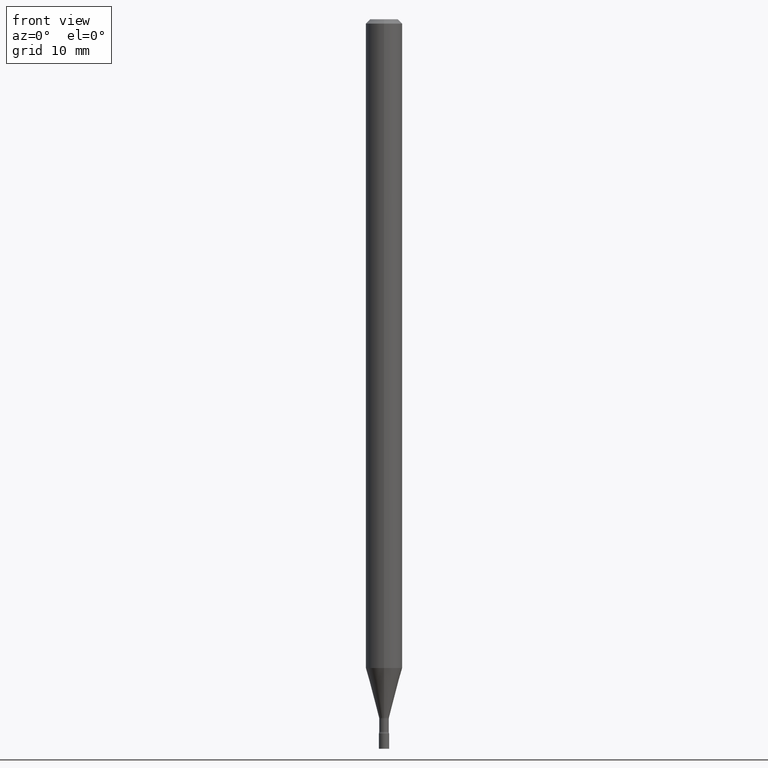
[diagram: clean part render]
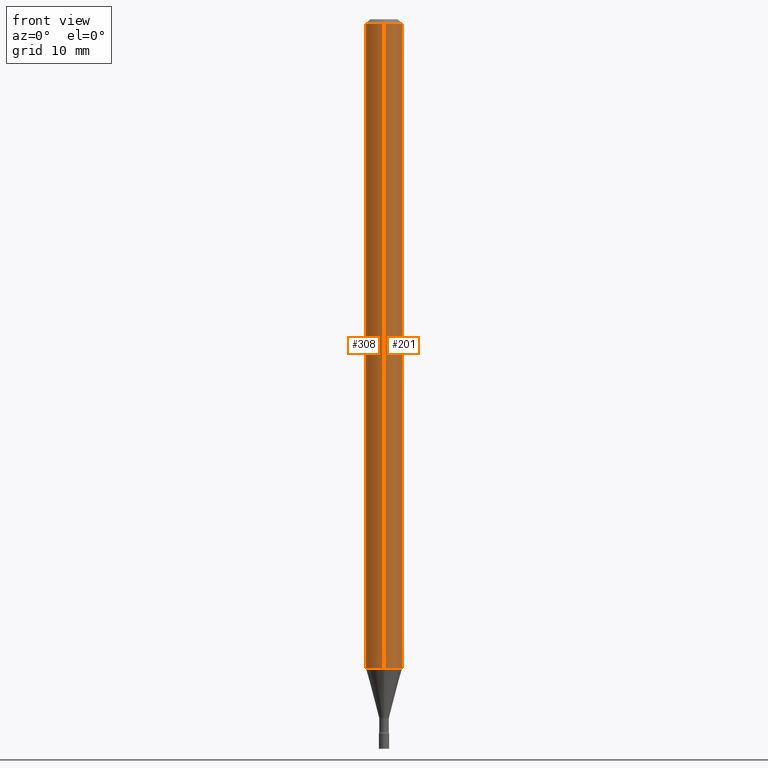
[diagram: same view with one multi-face feature highlighted, each face labeled with its STEP entity id]
A machine part, front view. The highlighted faces form ONE feature: a constant-radius fillet chain: 2 tangent blend faces with common blend radius 1.5875 mm. The faces share edges in the B-rep.
Their STEP definitions:
[1] entity #201 (Cylinder):
#18 = CARTESIAN_POINT ( 'NONE',  ( -4.364351673553912750E-16, -0.06250000000000005551, -0.01499999999999981209 ) ) ;
#19 = DIRECTION ( 'NONE',  ( -2.445477489033632295E-29, 3.491468904509902525E-15, 1.000000000000000000 ) ) ;
#27 = EDGE_CURVE ( 'NONE', #424, #189, #295, .T. ) ;
#28 = EDGE_CURVE ( 'NONE', #252, #455, #221, .T. ) ;
#43 = VECTOR ( 'NONE', #146, 39.37007874015748143 ) ;
#46 = CARTESIAN_POINT ( 'NONE',  ( 3.668216233550456149E-31, -5.237203356764864338E-17, -0.01500000000000003067 ) ) ;
#55 = DIRECTION ( 'NONE',  ( -2.445477489033632014E-29, 3.491468904509902130E-15, 1.000000000000000000 ) ) ;
#84 = VECTOR ( 'NONE', #55, 39.37007874015748143 ) ;
#100 = FACE_OUTER_BOUND ( 'NONE', #205, .T. ) ;
#102 = CARTESIAN_POINT ( 'NONE',  ( -4.364351673553916201E-16, -0.06250000000000000000, 2.182168065318689078E-16 ) ) ;
#110 = AXIS2_PLACEMENT_3D ( 'NONE', #429, #479, #443 ) ;
#118 = CARTESIAN_POINT ( 'NONE',  ( 4.440892098501173434E-16, 0.06249999999999995143, -0.01500000000000024751 ) ) ;
#141 = EDGE_CURVE ( 'NONE', #455, #189, #323, .T. ) ;
#146 = DIRECTION ( 'NONE',  ( -2.445477489033632014E-29, 3.491468904509902130E-15, 1.000000000000000000 ) ) ;
#189 = VERTEX_POINT ( 'NONE', #118 ) ;
#201 = ADVANCED_FACE ( 'NONE', ( #100 ), #379, .T. ) ;
#202 = ORIENTED_EDGE ( 'NONE', *, *, #511, .T. ) ;
#205 = EDGE_LOOP ( 'NONE', ( #202, #497, #248, #469 ) ) ;
#215 = DIRECTION ( 'NONE',  ( -6.982962677686265922E-15, -1.000000000000000000, 3.483106191921935554E-15 ) ) ;
#221 = LINE ( 'NONE', #102, #43 ) ;
#236 = CARTESIAN_POINT ( 'NONE',  ( 4.440892098501168504E-16, 0.06249999999999222844, -2.223139060311453807 ) ) ;
#248 = ORIENTED_EDGE ( 'NONE', *, *, #141, .F. ) ;
#250 = AXIS2_PLACEMENT_3D ( 'NONE', #46, #255, #215 ) ;
#252 = VERTEX_POINT ( 'NONE', #382 ) ;
#255 = DIRECTION ( 'NONE',  ( -2.445477489033632295E-29, 3.491468904509902525E-15, 1.000000000000000000 ) ) ;
#261 = DIRECTION ( 'NONE',  ( -6.982962677686265922E-15, -1.000000000000000000, 3.491468904509902525E-15 ) ) ;
#295 = LINE ( 'NONE', #405, #84 ) ;
#323 = CIRCLE ( 'NONE', #250, 0.06250000000000000000 ) ;
#379 = CYLINDRICAL_SURFACE ( 'NONE', #503, 0.06250000000000000000 ) ;
#382 = CARTESIAN_POINT ( 'NONE',  ( -4.364351673553374845E-16, -0.06250000000000778544, -2.223139060311453363 ) ) ;
#405 = CARTESIAN_POINT ( 'NONE',  ( 4.440892098500625669E-16, 0.06250000000000000000, -2.182168065318689078E-16 ) ) ;
#424 = VERTEX_POINT ( 'NONE', #236 ) ;
#429 = CARTESIAN_POINT ( 'NONE',  ( 5.436636526983041934E-29, -7.762020899478804819E-15, -2.223139060311453363 ) ) ;
#443 = DIRECTION ( 'NONE',  ( -6.982962677686265922E-15, -1.000000000000000000, 4.370956789862821150E-15 ) ) ;
#455 = VERTEX_POINT ( 'NONE', #18 ) ;
#469 = ORIENTED_EDGE ( 'NONE', *, *, #28, .F. ) ;
#479 = DIRECTION ( 'NONE',  ( -2.445477489033632295E-29, 3.491468904509902525E-15, 1.000000000000000000 ) ) ;
#497 = ORIENTED_EDGE ( 'NONE', *, *, #27, .T. ) ;
#500 = CARTESIAN_POINT ( 'NONE',  ( 0.000000000000000000, 0.000000000000000000, 0.000000000000000000 ) ) ;
#503 = AXIS2_PLACEMENT_3D ( 'NONE', #500, #19, #261 ) ;
#511 = EDGE_CURVE ( 'NONE', #252, #424, #516, .T. ) ;
#516 = CIRCLE ( 'NONE', #110, 0.06250000000000000000 ) ;
[2] entity #308 (Cylinder):
#11 = FACE_OUTER_BOUND ( 'NONE', #514, .T. ) ;
#17 = DIRECTION ( 'NONE',  ( -6.982962677686265922E-15, -1.000000000000000000, 3.483106191921935554E-15 ) ) ;
#18 = CARTESIAN_POINT ( 'NONE',  ( -4.364351673553912750E-16, -0.06250000000000005551, -0.01499999999999981209 ) ) ;
#27 = EDGE_CURVE ( 'NONE', #424, #189, #295, .T. ) ;
#28 = EDGE_CURVE ( 'NONE', #252, #455, #221, .T. ) ;
#39 = EDGE_CURVE ( 'NONE', #189, #455, #446, .T. ) ;
#43 = VECTOR ( 'NONE', #146, 39.37007874015748143 ) ;
#55 = DIRECTION ( 'NONE',  ( -2.445477489033632014E-29, 3.491468904509902130E-15, 1.000000000000000000 ) ) ;
#84 = VECTOR ( 'NONE', #55, 39.37007874015748143 ) ;
#102 = CARTESIAN_POINT ( 'NONE',  ( -4.364351673553916201E-16, -0.06250000000000000000, 2.182168065318689078E-16 ) ) ;
#118 = CARTESIAN_POINT ( 'NONE',  ( 4.440892098501173434E-16, 0.06249999999999995143, -0.01500000000000024751 ) ) ;
#134 = AXIS2_PLACEMENT_3D ( 'NONE', #259, #417, #17 ) ;
#146 = DIRECTION ( 'NONE',  ( -2.445477489033632014E-29, 3.491468904509902130E-15, 1.000000000000000000 ) ) ;
#189 = VERTEX_POINT ( 'NONE', #118 ) ;
#221 = LINE ( 'NONE', #102, #43 ) ;
#230 = ORIENTED_EDGE ( 'NONE', *, *, #27, .F. ) ;
#236 = CARTESIAN_POINT ( 'NONE',  ( 4.440892098501168504E-16, 0.06249999999999222844, -2.223139060311453807 ) ) ;
#238 = ORIENTED_EDGE ( 'NONE', *, *, #310, .T. ) ;
#252 = VERTEX_POINT ( 'NONE', #382 ) ;
#259 = CARTESIAN_POINT ( 'NONE',  ( 3.668216233550456149E-31, -5.237203356764864338E-17, -0.01500000000000003067 ) ) ;
#271 = ORIENTED_EDGE ( 'NONE', *, *, #39, .F. ) ;
#282 = CIRCLE ( 'NONE', #451, 0.06250000000000000000 ) ;
#295 = LINE ( 'NONE', #405, #84 ) ;
#296 = CYLINDRICAL_SURFACE ( 'NONE', #486, 0.06250000000000000000 ) ;
#307 = ORIENTED_EDGE ( 'NONE', *, *, #28, .T. ) ;
#308 = ADVANCED_FACE ( 'NONE', ( #11 ), #296, .T. ) ;
#310 = EDGE_CURVE ( 'NONE', #424, #252, #282, .T. ) ;
#328 = CARTESIAN_POINT ( 'NONE',  ( 0.000000000000000000, 0.000000000000000000, 0.000000000000000000 ) ) ;
#330 = DIRECTION ( 'NONE',  ( -2.445477489033632295E-29, 3.491468904509902525E-15, 1.000000000000000000 ) ) ;
#344 = DIRECTION ( 'NONE',  ( -6.982962677686265922E-15, -1.000000000000000000, 3.491468904509902525E-15 ) ) ;
#382 = CARTESIAN_POINT ( 'NONE',  ( -4.364351673553374845E-16, -0.06250000000000778544, -2.223139060311453363 ) ) ;
#405 = CARTESIAN_POINT ( 'NONE',  ( 4.440892098500625669E-16, 0.06250000000000000000, -2.182168065318689078E-16 ) ) ;
#411 = CARTESIAN_POINT ( 'NONE',  ( 5.436636526983041934E-29, -7.762020899478804819E-15, -2.223139060311453363 ) ) ;
#417 = DIRECTION ( 'NONE',  ( -2.445477489033632295E-29, 3.491468904509902525E-15, 1.000000000000000000 ) ) ;
#424 = VERTEX_POINT ( 'NONE', #236 ) ;
#446 = CIRCLE ( 'NONE', #134, 0.06250000000000000000 ) ;
#451 = AXIS2_PLACEMENT_3D ( 'NONE', #411, #330, #506 ) ;
#455 = VERTEX_POINT ( 'NONE', #18 ) ;
#486 = AXIS2_PLACEMENT_3D ( 'NONE', #328, #490, #344 ) ;
#490 = DIRECTION ( 'NONE',  ( -2.445477489033632295E-29, 3.491468904509902525E-15, 1.000000000000000000 ) ) ;
#506 = DIRECTION ( 'NONE',  ( -6.982962677686265922E-15, -1.000000000000000000, 4.370956789862821150E-15 ) ) ;
#514 = EDGE_LOOP ( 'NONE', ( #230, #238, #307, #271 ) ) ;